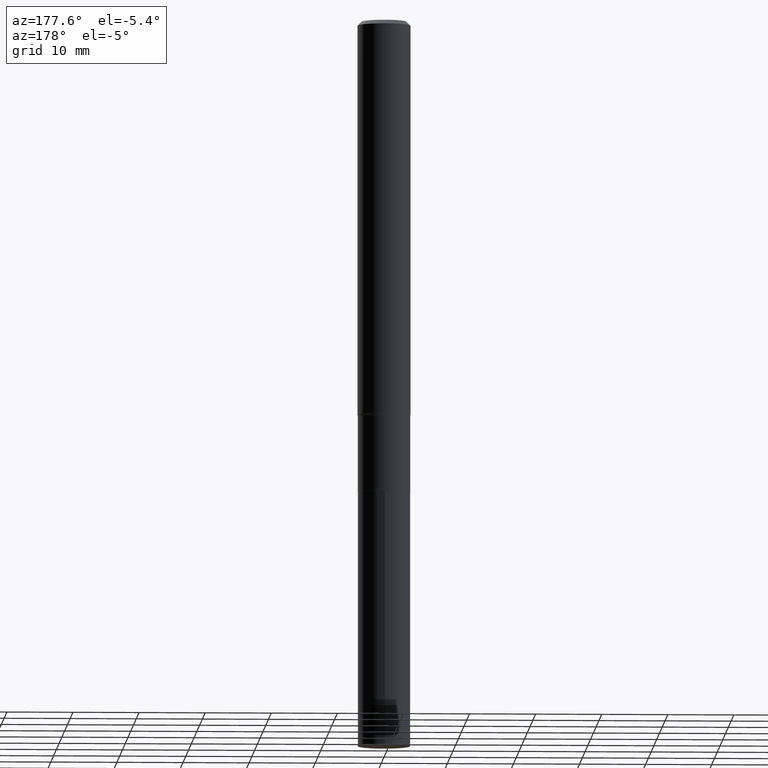
[diagram: clean part render]
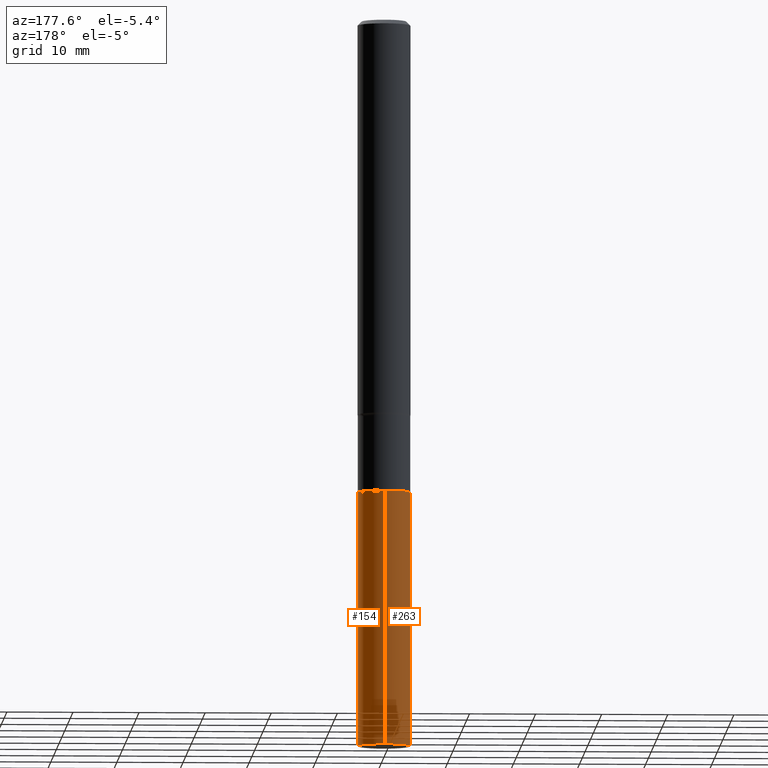
[diagram: same view with one multi-face feature highlighted, each face labeled with its STEP entity id]
A machine part, auxiliary view. The highlighted faces form ONE feature: a constant-radius fillet chain: 2 tangent blend faces with common blend radius 3.9688 mm. The faces share edges in the B-rep.
Their STEP definitions:
[1] entity #263 (Cylinder):
#45 = EDGE_CURVE ( 'NONE', #72, #332, #169, .T. ) ;
#47 = DIRECTION ( 'NONE',  ( -2.445575912217053576E-29, 3.491327956909343403E-15, 1.000000000000000000 ) ) ;
#55 = DIRECTION ( 'NONE',  ( -2.445575912217053576E-29, 3.491327956909343403E-15, 1.000000000000000000 ) ) ;
#60 = LINE ( 'NONE', #138, #305 ) ;
#67 = AXIS2_PLACEMENT_3D ( 'NONE', #128, #55, #452 ) ;
#72 = VERTEX_POINT ( 'NONE', #343 ) ;
#76 = ORIENTED_EDGE ( 'NONE', *, *, #426, .T. ) ;
#89 = AXIS2_PLACEMENT_3D ( 'NONE', #210, #139, #461 ) ;
#128 = CARTESIAN_POINT ( 'NONE',  ( 6.883261048769304332E-29, -9.827472524441802676E-15, -2.814700000000000646 ) ) ;
#138 = CARTESIAN_POINT ( 'NONE',  ( -1.091087918388410345E-15, -0.1562500000000098532, -2.814699999999999758 ) ) ;
#139 = DIRECTION ( 'NONE',  ( -2.445575912217053576E-29, 3.491327956909343403E-15, 1.000000000000000000 ) ) ;
#151 = VERTEX_POINT ( 'NONE', #197 ) ;
#152 = VECTOR ( 'NONE', #459, 39.37007874015748143 ) ;
#169 = CIRCLE ( 'NONE', #399, 0.1562500000000000000 ) ;
#174 = DIRECTION ( 'NONE',  ( -2.445575912217053576E-29, 3.491327956909343403E-15, 1.000000000000000000 ) ) ;
#176 = ORIENTED_EDGE ( 'NONE', *, *, #283, .F. ) ;
#185 = VERTEX_POINT ( 'NONE', #423 ) ;
#194 = CARTESIAN_POINT ( 'NONE',  ( 6.883261048769304332E-29, -9.827472524441802676E-15, -2.814700000000000646 ) ) ;
#197 = CARTESIAN_POINT ( 'NONE',  ( -1.091087918388373072E-15, -0.1562500000000151268, -4.330700000000000216 ) ) ;
#206 = FACE_OUTER_BOUND ( 'NONE', #285, .T. ) ;
#210 = CARTESIAN_POINT ( 'NONE',  ( 1.059075413169035979E-28, -1.512032570711636875E-14, -4.330700000000001104 ) ) ;
#249 = CARTESIAN_POINT ( 'NONE',  ( -1.091087918388410345E-15, -0.1562500000000098532, -2.814699999999999758 ) ) ;
#263 = ADVANCED_FACE ( 'NONE', ( #206 ), #352, .T. ) ;
#283 = EDGE_CURVE ( 'NONE', #185, #72, #286, .T. ) ;
#285 = EDGE_LOOP ( 'NONE', ( #176, #363, #76, #304 ) ) ;
#286 = LINE ( 'NONE', #398, #152 ) ;
#304 = ORIENTED_EDGE ( 'NONE', *, *, #45, .F. ) ;
#305 = VECTOR ( 'NONE', #174, 39.37007874015748143 ) ;
#312 = EDGE_CURVE ( 'NONE', #185, #151, #325, .T. ) ;
#325 = CIRCLE ( 'NONE', #89, 0.1562500000000000000 ) ;
#332 = VERTEX_POINT ( 'NONE', #249 ) ;
#343 = CARTESIAN_POINT ( 'NONE',  ( 1.110223024625262642E-15, 0.1562499999999901745, -2.814700000000001090 ) ) ;
#352 = CYLINDRICAL_SURFACE ( 'NONE', #67, 0.1562500000000000000 ) ;
#363 = ORIENTED_EDGE ( 'NONE', *, *, #312, .T. ) ;
#398 = CARTESIAN_POINT ( 'NONE',  ( 1.110223024625225171E-15, 0.1562499999999901745, -2.814700000000001090 ) ) ;
#399 = AXIS2_PLACEMENT_3D ( 'NONE', #194, #47, #409 ) ;
#409 = DIRECTION ( 'NONE',  ( -6.982962677686265133E-15, -1.000000000000000000, 3.496765431890256920E-15 ) ) ;
#423 = CARTESIAN_POINT ( 'NONE',  ( 1.110223024625243710E-15, 0.1562499999999848732, -4.330700000000001104 ) ) ;
#426 = EDGE_CURVE ( 'NONE', #151, #332, #60, .T. ) ;
#452 = DIRECTION ( 'NONE',  ( -6.982962677686265133E-15, -1.000000000000000000, 3.496765431890256920E-15 ) ) ;
#459 = DIRECTION ( 'NONE',  ( -2.445575912217053576E-29, 3.491327956909343403E-15, 1.000000000000000000 ) ) ;
#461 = DIRECTION ( 'NONE',  ( -6.982962677686265133E-15, -1.000000000000000000, 3.496765431890256920E-15 ) ) ;
[2] entity #154 (Cylinder):
#12 = AXIS2_PLACEMENT_3D ( 'NONE', #328, #434, #111 ) ;
#26 = AXIS2_PLACEMENT_3D ( 'NONE', #164, #201, #171 ) ;
#60 = LINE ( 'NONE', #138, #305 ) ;
#72 = VERTEX_POINT ( 'NONE', #343 ) ;
#87 = CIRCLE ( 'NONE', #12, 0.1562500000000000000 ) ;
#111 = DIRECTION ( 'NONE',  ( -6.982962677686265133E-15, -1.000000000000000000, 3.496765431890256920E-15 ) ) ;
#138 = CARTESIAN_POINT ( 'NONE',  ( -1.091087918388410345E-15, -0.1562500000000098532, -2.814699999999999758 ) ) ;
#151 = VERTEX_POINT ( 'NONE', #197 ) ;
#152 = VECTOR ( 'NONE', #459, 39.37007874015748143 ) ;
#154 = ADVANCED_FACE ( 'NONE', ( #240 ), #234, .T. ) ;
#156 = CIRCLE ( 'NONE', #259, 0.1562500000000000000 ) ;
#159 = ORIENTED_EDGE ( 'NONE', *, *, #376, .F. ) ;
#164 = CARTESIAN_POINT ( 'NONE',  ( 6.883261048769304332E-29, -9.827472524441802676E-15, -2.814700000000000646 ) ) ;
#171 = DIRECTION ( 'NONE',  ( -6.982962677686265133E-15, -1.000000000000000000, 3.496765431890256920E-15 ) ) ;
#174 = DIRECTION ( 'NONE',  ( -2.445575912217053576E-29, 3.491327956909343403E-15, 1.000000000000000000 ) ) ;
#185 = VERTEX_POINT ( 'NONE', #423 ) ;
#189 = ORIENTED_EDGE ( 'NONE', *, *, #426, .F. ) ;
#196 = EDGE_CURVE ( 'NONE', #151, #185, #156, .T. ) ;
#197 = CARTESIAN_POINT ( 'NONE',  ( -1.091087918388373072E-15, -0.1562500000000151268, -4.330700000000000216 ) ) ;
#201 = DIRECTION ( 'NONE',  ( -2.445575912217053576E-29, 3.491327956909343403E-15, 1.000000000000000000 ) ) ;
#234 = CYLINDRICAL_SURFACE ( 'NONE', #26, 0.1562500000000000000 ) ;
#240 = FACE_OUTER_BOUND ( 'NONE', #360, .T. ) ;
#249 = CARTESIAN_POINT ( 'NONE',  ( -1.091087918388410345E-15, -0.1562500000000098532, -2.814699999999999758 ) ) ;
#259 = AXIS2_PLACEMENT_3D ( 'NONE', #390, #385, #269 ) ;
#269 = DIRECTION ( 'NONE',  ( -6.982962677686265133E-15, -1.000000000000000000, 3.496765431890256920E-15 ) ) ;
#283 = EDGE_CURVE ( 'NONE', #185, #72, #286, .T. ) ;
#286 = LINE ( 'NONE', #398, #152 ) ;
#305 = VECTOR ( 'NONE', #174, 39.37007874015748143 ) ;
#306 = ORIENTED_EDGE ( 'NONE', *, *, #283, .T. ) ;
#328 = CARTESIAN_POINT ( 'NONE',  ( 6.883261048769304332E-29, -9.827472524441802676E-15, -2.814700000000000646 ) ) ;
#332 = VERTEX_POINT ( 'NONE', #249 ) ;
#343 = CARTESIAN_POINT ( 'NONE',  ( 1.110223024625262642E-15, 0.1562499999999901745, -2.814700000000001090 ) ) ;
#360 = EDGE_LOOP ( 'NONE', ( #446, #306, #159, #189 ) ) ;
#376 = EDGE_CURVE ( 'NONE', #332, #72, #87, .T. ) ;
#385 = DIRECTION ( 'NONE',  ( -2.445575912217053576E-29, 3.491327956909343403E-15, 1.000000000000000000 ) ) ;
#390 = CARTESIAN_POINT ( 'NONE',  ( 1.059075413169035979E-28, -1.512032570711636875E-14, -4.330700000000001104 ) ) ;
#398 = CARTESIAN_POINT ( 'NONE',  ( 1.110223024625225171E-15, 0.1562499999999901745, -2.814700000000001090 ) ) ;
#423 = CARTESIAN_POINT ( 'NONE',  ( 1.110223024625243710E-15, 0.1562499999999848732, -4.330700000000001104 ) ) ;
#426 = EDGE_CURVE ( 'NONE', #151, #332, #60, .T. ) ;
#434 = DIRECTION ( 'NONE',  ( -2.445575912217053576E-29, 3.491327956909343403E-15, 1.000000000000000000 ) ) ;
#446 = ORIENTED_EDGE ( 'NONE', *, *, #196, .T. ) ;
#459 = DIRECTION ( 'NONE',  ( -2.445575912217053576E-29, 3.491327956909343403E-15, 1.000000000000000000 ) ) ;